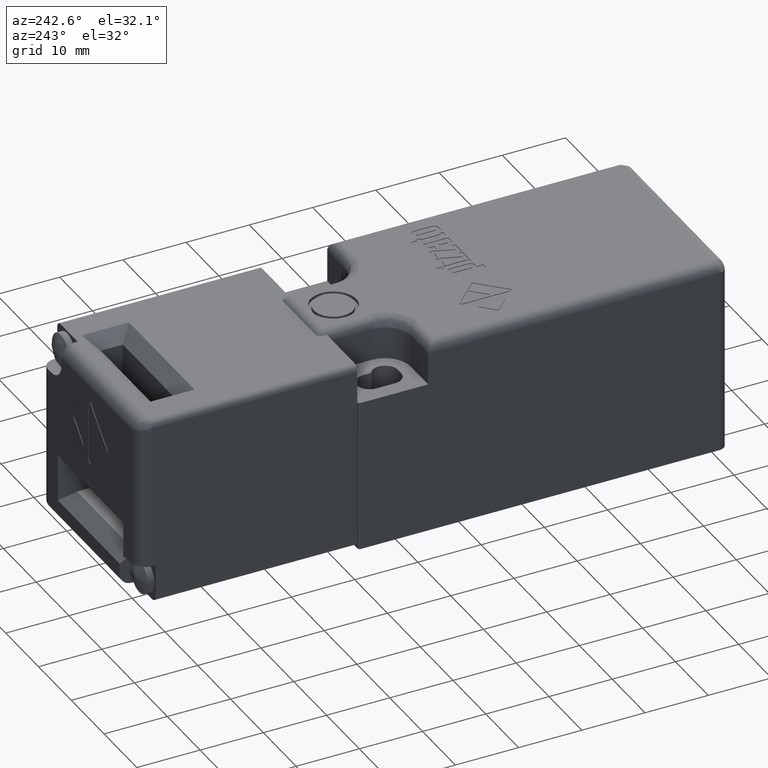
[diagram: clean part render]
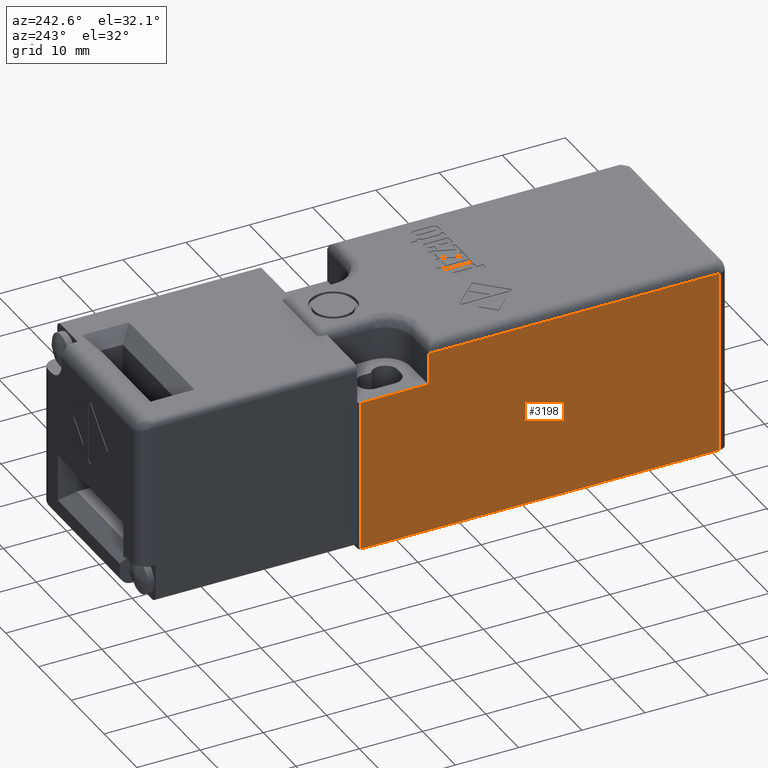
[diagram: same view with one face highlighted and labeled with its STEP entity id]
A machine part, auxiliary view. The second image highlights one B-rep face of the part: STEP entity #3198.
In plain terms, the highlighted planar face has unit normal (1, 0, 0).
Its self-contained STEP definition (entity closure, byte-faithful):
#303=CARTESIAN_POINT('',(-15.400000000000006,-50.000000000000014,-12.199999999999999));
#304=VERTEX_POINT('',#303);
#312=CARTESIAN_POINT('',(-15.400000000000006,6.699999999999990,-12.199999999999999));
#313=VERTEX_POINT('',#312);
#314=CARTESIAN_POINT('',(-15.400000000000006,6.699999999999989,-12.199999999999999));
#315=DIRECTION('',(0.0,-1.0,0.0));
#316=VECTOR('',#315,56.700000000000003);
#317=LINE('',#314,#316);
#318=EDGE_CURVE('',#313,#304,#317,.T.);
#2060=CARTESIAN_POINT('',(-15.400000000000006,6.699999999999990,12.000000000000004));
#2061=VERTEX_POINT('',#2060);
#2069=CARTESIAN_POINT('',(-15.400000000000000,-4.0,12.000000000000004));
#2070=VERTEX_POINT('',#2069);
#2071=CARTESIAN_POINT('',(-15.400000000000006,6.699999999999990,12.000000000000004));
#2072=DIRECTION('',(0.0,-1.0,0.0));
#2073=VECTOR('',#2072,10.699999999999990);
#2074=LINE('',#2071,#2073);
#2075=EDGE_CURVE('',#2061,#2070,#2074,.T.);
#3161=CARTESIAN_POINT('',(-15.400000000000006,-51.500000000000021,18.600000000000001));
#3162=DIRECTION('',(1.0,0.0,0.0));
#3163=DIRECTION('',(0.0,0.0,-1.0));
#3164=AXIS2_PLACEMENT_3D('',#3161,#3162,#3163);
#3165=PLANE('',#3164);
#3166=ORIENTED_EDGE('',*,*,#2075,.F.);
#3167=CARTESIAN_POINT('',(-15.400000000000006,6.699999999999990,12.000000000000004));
#3168=DIRECTION('',(0.0,0.0,-1.0));
#3169=VECTOR('',#3168,24.200000000000003);
#3170=LINE('',#3167,#3169);
#3171=EDGE_CURVE('',#2061,#313,#3170,.T.);
#3172=ORIENTED_EDGE('',*,*,#3171,.T.);
#3173=ORIENTED_EDGE('',*,*,#318,.T.);
#3174=CARTESIAN_POINT('',(-15.400000000000006,-50.000000000000014,17.100000000000001));
#3175=VERTEX_POINT('',#3174);
#3176=CARTESIAN_POINT('',(-15.400000000000006,-50.000000000000014,-12.199999999999999));
#3177=DIRECTION('',(0.0,0.0,1.0));
#3178=VECTOR('',#3177,29.300000000000001);
#3179=LINE('',#3176,#3178);
#3180=EDGE_CURVE('',#304,#3175,#3179,.T.);
#3181=ORIENTED_EDGE('',*,*,#3180,.T.);
#3182=CARTESIAN_POINT('',(-15.400000000000000,-4.0,17.100000000000001));
#3183=VERTEX_POINT('',#3182);
#3184=CARTESIAN_POINT('',(-15.400000000000006,-50.000000000000014,17.100000000000001));
#3185=DIRECTION('',(0.0,1.0,0.0));
#3186=VECTOR('',#3185,46.000000000000014);
#3187=LINE('',#3184,#3186);
#3188=EDGE_CURVE('',#3175,#3183,#3187,.T.);
#3189=ORIENTED_EDGE('',*,*,#3188,.T.);
#3190=CARTESIAN_POINT('',(-15.400000000000000,-4.0,12.000000000000004));
#3191=DIRECTION('',(0.0,0.0,1.0));
#3192=VECTOR('',#3191,5.099999999999998);
#3193=LINE('',#3190,#3192);
#3194=EDGE_CURVE('',#2070,#3183,#3193,.T.);
#3195=ORIENTED_EDGE('',*,*,#3194,.F.);
#3196=EDGE_LOOP('',(#3166,#3172,#3173,#3181,#3189,#3195));
#3197=FACE_OUTER_BOUND('',#3196,.T.);
#3198=ADVANCED_FACE('',(#3197),#3165,.F.);